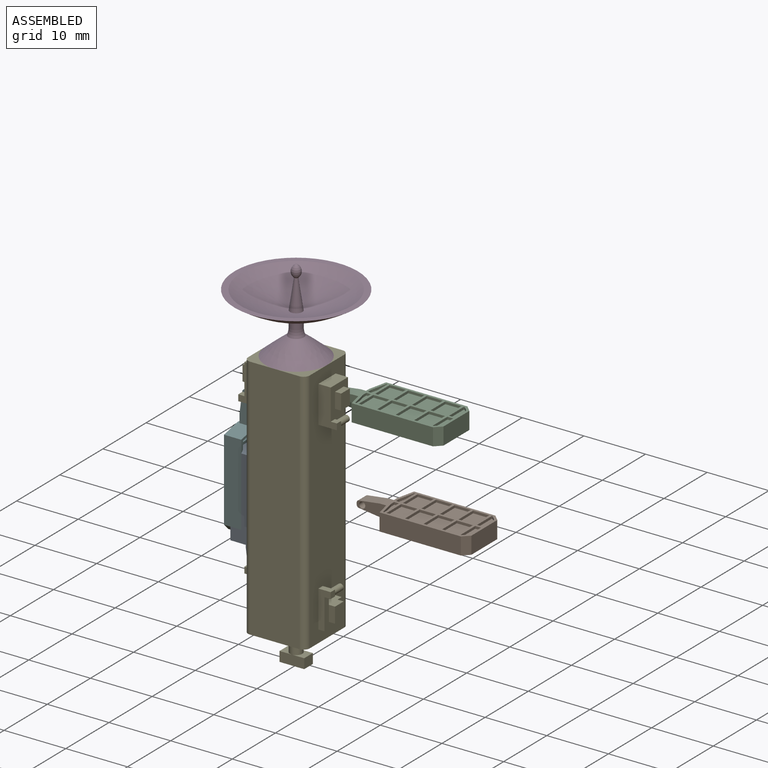
[diagram: assembled view]
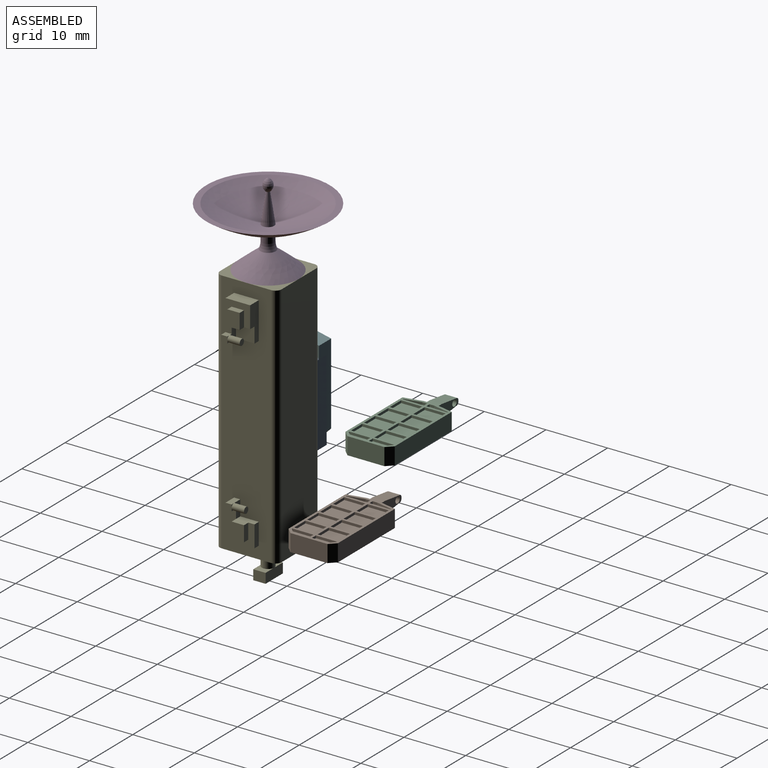
[diagram: assembled view, second angle]
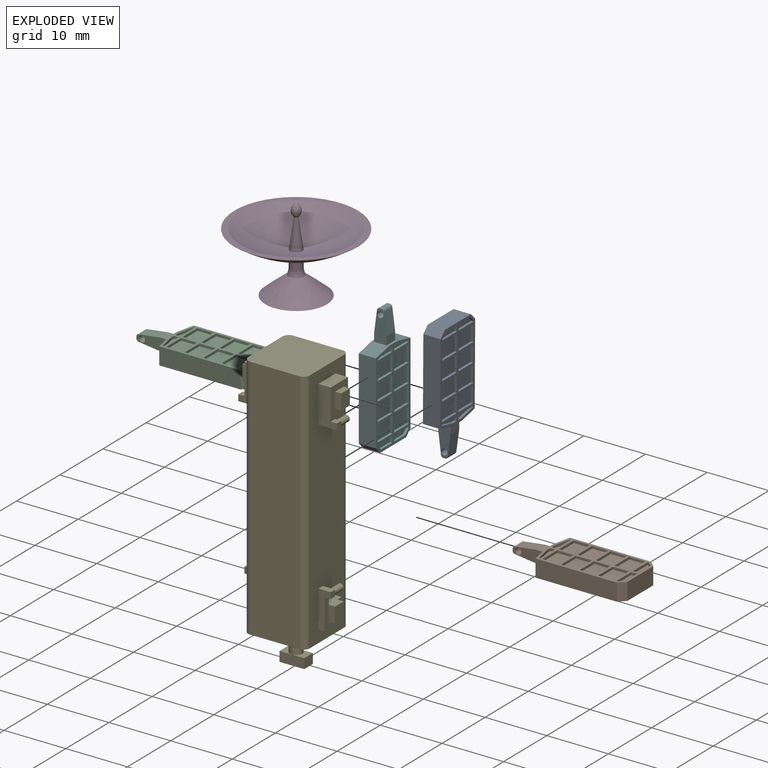
[diagram: exploded view]
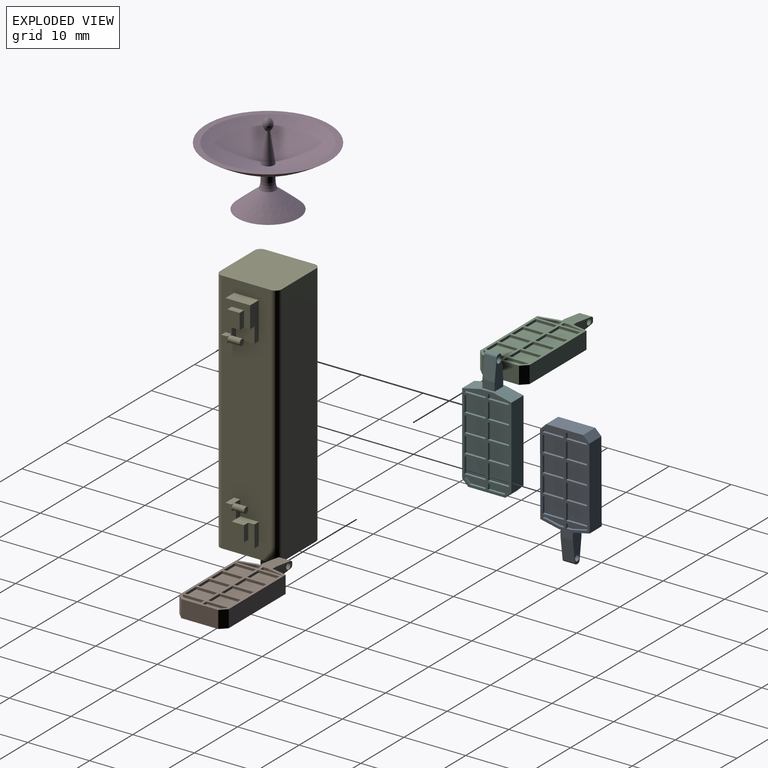
[diagram: exploded view, second angle]
ASSEMBLY  parts=6 mates=3
PART A: 149 faces, bbox 20x8x2.8 mm
  f0: plane 2x1.33mm, normal (0,0,-1), area 2.7mm2, adj f4,f6,f7,f82
  f1: plane 2x1.33mm, normal (0,0,1), area 2.7mm2, adj f2,f6,f7,f17
  f2: plane 3.45x2mm, normal (-0.13,0,0.99), area 7mm2, adj f1,f6,f7,f15
  f3: plane 2x0.3mm, normal (-1,0,0), area 0.6mm2, adj f6,f7,f15,f16
  f4: plane 3.45x2mm, normal (-0.13,0,-0.99), area 7mm2, adj f0,f6,f7,f16
  f5: cylinder r=0.5mm len=2mm, axis (0,1,0), area 6.3mm2, adj f6,f7
  f6: plane 5.13x2mm, normal (0,-1,0), area 7.5mm2, adj f0,f1,f2,f3,f4,f5,f11,f15
  f7: plane 5.13x2mm, normal (0,1,0), area 7.5mm2, adj f0,f1,f2,f3,f4,f5,f12,f15
  f8: plane 6x2.8mm, normal (1,0,0), area 16.8mm2, adj f13,f14,f65,f135
  f9: plane 13.2x2.8mm, normal (0,-1,0), area 37mm2, adj f11,f13,f65,f135
  f10: plane 13.2x2.8mm, normal (0,1,0), area 37mm2, adj f12,f14,f65,f135
  f11: plane 3x2.8mm, normal (-0.98,-0.22,0), area 8.6mm2, adj f6,f9,f17,f65,f82,f135
  f12: plane 3x2.8mm, normal (-0.98,0.22,0), area 8.6mm2, adj f7,f10,f17,f65,f82,f135
  f13: plane 2.8x1mm, normal (0.71,-0.71,0), area 4mm2, adj f8,f9,f65,f135
  f14: plane 2.8x1mm, normal (0.71,0.71,0), area 4mm2, adj f8,f10,f65,f135
  f15: cylinder r=0.4mm len=2mm, axis (0,1,0), area 1.2mm2, adj f2,f3,f6,f7
  f16: cylinder r=0.4mm len=2mm, axis (0,-1,0), area 1.2mm2, adj f3,f4,f6,f7
  f17: plane 2x0.4mm, normal (-1,0,0), area 0.8mm2, adj f1,f11,f12,f65
  f18: plane 3.4x0.4mm, normal (1,0,0), area 1.4mm2, adj f19,f21,f65,f81
  f19: plane 2.6x0.4mm, normal (0,1,0), area 1mm2, adj f18,f20,f65,f81
  f20: plane 3.4x0.4mm, normal (-1,0,0), area 1.4mm2, adj f19,f21,f65,f81
  f21: plane 2.6x0.4mm, normal (0,-1,0), area 1mm2, adj f18,f20,f65,f81
  f22: plane 2.6x0.4mm, normal (0,1,0), area 1mm2, adj f23,f25,f65,f80
  f23: plane 3.4x0.4mm, normal (-1,0,0), area 1.4mm2, adj f22,f24,f65,f80
  f24: plane 2.6x0.4mm, normal (0,-1,0), area 1mm2, adj f23,f25,f65,f80
  f25: plane 3.4x0.4mm, normal (1,0,0), area 1.4mm2, adj f22,f24,f65,f80
  f26: plane 2.6x0.4mm, normal (0,1,0), area 1mm2, adj f27,f29,f65,f79
  f27: plane 3.4x0.4mm, normal (-1,0,0), area 1.4mm2, adj f26,f28,f65,f79
  f28: plane 2.6x0.4mm, normal (0,-1,0), area 1mm2, adj f27,f29,f65,f79
  f29: plane 3.4x0.4mm, normal (1,0,0), area 1.4mm2, adj f26,f28,f65,f79
  f30: plane 2.6x0.4mm, normal (0,1,0), area 1mm2, adj f31,f33,f65,f78
  f31: plane 3.4x0.4mm, normal (-1,0,0), area 1.4mm2, adj f30,f32,f65,f78
  f32: plane 2.6x0.4mm, normal (0,-1,0), area 1mm2, adj f31,f33,f65,f78
  f33: plane 3.4x0.4mm, normal (1,0,0), area 1.4mm2, adj f30,f32,f65,f78
  f34: plane 0.92x0.4mm, normal (0,1,0), area 0.4mm2, adj f35,f38,f65,f77
  f35: plane 2.63x0.4mm, normal (-1,0,0), area 1.1mm2, adj f34,f36,f65,f77
  f36: plane 0.77x0.77mm, normal (-0.71,-0.71,0), area 0.4mm2, adj f35,f37,f65,f77
  f37: plane 0.4x0.16mm, normal (0,-1,0), area 0.1mm2, adj f36,f38,f65,f77
  f38: plane 3.4x0.4mm, normal (1,0,0), area 1.4mm2, adj f34,f37,f65,f77
  f39: plane 3.4x0.4mm, normal (-1,0,0), area 1.4mm2, adj f40,f43,f65,f76
  f40: plane 0.4x0.16mm, normal (0,-1,0), area 0.1mm2, adj f39,f41,f65,f76
  f41: plane 2.64x0.59mm, normal (0.98,-0.22,0), area 1.1mm2, adj f40,f42,f65,f76
  f42: plane 0.76x0.4mm, normal (1,0,0), area 0.3mm2, adj f41,f43,f65,f76
  f43: plane 0.74x0.4mm, normal (0,1,0), area 0.3mm2, adj f39,f42,f65,f76
  f44: plane 0.77x0.77mm, normal (-0.71,0.71,0), area 0.4mm2, adj f45,f48,f65,f75
  f45: plane 2.63x0.4mm, normal (-1,0,0), area 1.1mm2, adj f44,f46,f65,f75
  f46: plane 0.92x0.4mm, normal (0,-1,0), area 0.4mm2, adj f45,f47,f65,f75
  f47: plane 3.4x0.4mm, normal (1,0,0), area 1.4mm2, adj f46,f48,f65,f75
  f48: plane 0.4x0.16mm, normal (0,1,0), area 0.1mm2, adj f44,f47,f65,f75
  f49: plane 3.4x0.4mm, normal (-1,0,0), area 1.4mm2, adj f50,f52,f65,f74
  f50: plane 2.6x0.4mm, normal (0,-1,0), area 1mm2, adj f49,f51,f65,f74
  f51: plane 3.4x0.4mm, normal (1,0,0), area 1.4mm2, adj f50,f52,f65,f74
  f52: plane 2.6x0.4mm, normal (0,1,0), area 1mm2, adj f49,f51,f65,f74
  f53: plane 3.4x0.4mm, normal (-1,0,0), area 1.4mm2, adj f54,f56,f65,f73
  f54: plane 2.6x0.4mm, normal (0,-1,0), area 1mm2, adj f53,f55,f65,f73
  f55: plane 3.4x0.4mm, normal (1,0,0), area 1.4mm2, adj f54,f56,f65,f73
  f56: plane 2.6x0.4mm, normal (0,1,0), area 1mm2, adj f53,f55,f65,f73
  f57: plane 3.4x0.4mm, normal (-1,0,0), area 1.4mm2, adj f58,f60,f65,f72
  f58: plane 2.6x0.4mm, normal (0,-1,0), area 1mm2, adj f57,f59,f65,f72
  f59: plane 3.4x0.4mm, normal (1,0,0), area 1.4mm2, adj f58,f60,f65,f72
  f60: plane 2.6x0.4mm, normal (0,1,0), area 1mm2, adj f57,f59,f65,f72
  f61: plane 3.4x0.4mm, normal (-1,0,0), area 1.4mm2, adj f62,f64,f65,f71
  f62: plane 2.6x0.4mm, normal (0,-1,0), area 1mm2, adj f61,f63,f65,f71
  f63: plane 3.4x0.4mm, normal (1,0,0), area 1.4mm2, adj f62,f64,f65,f71
  f64: plane 2.6x0.4mm, normal (0,1,0), area 1mm2, adj f61,f63,f65,f71
  f65: plane 14.87x8mm, normal (0,0,1), area 36mm2, adj f8,f9,f10,f11,f12,f13,f14,f17
  f66: plane 2.64x0.59mm, normal (0.98,0.22,0), area 1.1mm2, adj f65,f67,f70,f148
  f67: plane 0.4x0.16mm, normal (0,1,0), area 0.1mm2, adj f65,f66,f68,f148
  f68: plane 3.4x0.4mm, normal (-1,0,0), area 1.4mm2, adj f65,f67,f69,f148
  f69: plane 0.74x0.4mm, normal (0,-1,0), area 0.3mm2, adj f65,f68,f70,f148
  f70: plane 0.76x0.4mm, normal (1,0,0), area 0.3mm2, adj f65,f66,f69,f148
  f71: plane 3.4x2.6mm, normal (0,0,1), area 8.8mm2, adj f61,f62,f63,f64
  f72: plane 3.4x2.6mm, normal (0,0,1), area 8.8mm2, adj f57,f58,f59,f60
  f73: plane 3.4x2.6mm, normal (0,0,1), area 8.8mm2, adj f53,f54,f55,f56
  f74: plane 3.4x2.6mm, normal (0,0,1), area 8.8mm2, adj f49,f50,f51,f52
  f75: plane 3.4x0.92mm, normal (0,0,1), area 2.8mm2, adj f44,f45,f46,f47,f48
  f76: plane 3.4x0.74mm, normal (0,0,1), area 1.8mm2, adj f39,f40,f41,f42,f43
  f77: plane 3.4x0.92mm, normal (0,0,1), area 2.8mm2, adj f34,f35,f36,f37,f38
  f78: plane 3.4x2.6mm, normal (0,0,1), area 8.8mm2, adj f30,f31,f32,f33
  f79: plane 3.4x2.6mm, normal (0,0,1), area 8.8mm2, adj f26,f27,f28,f29
  f80: plane 3.4x2.6mm, normal (0,0,1), area 8.8mm2, adj f22,f23,f24,f25
  f81: plane 3.4x2.6mm, normal (0,0,1), area 8.8mm2, adj f18,f19,f20,f21
  f82: plane 2x0.4mm, normal (-1,0,0), area 0.8mm2, adj f0,f11,f12,f135
  f83: plane 2.6x0.4mm, normal (0,-1,0), area 1mm2, adj f84,f123,f135,f147
  f84: plane 3.4x0.4mm, normal (-1,0,0), area 1.4mm2, adj f83,f85,f135,f147
  f85: plane 2.6x0.4mm, normal (0,1,0), area 1mm2, adj f84,f123,f135,f147
  f86: plane 3.4x0.4mm, normal (1,0,0), area 1.4mm2, adj f87,f124,f135,f146
  f87: plane 2.6x0.4mm, normal (0,-1,0), area 1mm2, adj f86,f88,f135,f146
  f88: plane 3.4x0.4mm, normal (-1,0,0), area 1.4mm2, adj f87,f124,f135,f146
  f89: plane 3.4x0.4mm, normal (1,0,0), area 1.4mm2, adj f90,f125,f135,f145
  f90: plane 2.6x0.4mm, normal (0,-1,0), area 1mm2, adj f89,f91,f135,f145
  f91: plane 3.4x0.4mm, normal (-1,0,0), area 1.4mm2, adj f90,f125,f135,f145
  f92: plane 3.4x0.4mm, normal (1,0,0), area 1.4mm2, adj f93,f126,f135,f144
  f93: plane 2.6x0.4mm, normal (0,-1,0), area 1mm2, adj f92,f94,f135,f144
  f94: plane 3.4x0.4mm, normal (-1,0,0), area 1.4mm2, adj f93,f126,f135,f144
  f95: plane 3.4x0.4mm, normal (1,0,0), area 1.4mm2, adj f96,f127,f135,f143
  f96: plane 0.4x0.16mm, normal (0,-1,0), area 0.1mm2, adj f95,f97,f135,f143
  f97: plane 0.77x0.77mm, normal (-0.71,-0.71,0), area 0.4mm2, adj f96,f98,f135,f143
  f98: plane 2.63x0.4mm, normal (-1,0,0), area 1.1mm2, adj f97,f127,f135,f143
  f99: plane 0.74x0.4mm, normal (0,1,0), area 0.3mm2, adj f100,f128,f135,f142
  f100: plane 0.76x0.4mm, normal (1,0,0), area 0.3mm2, adj f99,f101,f135,f142
  f101: plane 2.64x0.59mm, normal (0.98,-0.22,0), area 1.1mm2, adj f100,f102,f135,f142
  f102: plane 0.4x0.16mm, normal (0,-1,0), area 0.1mm2, adj f101,f128,f135,f142
  f103: plane 0.4x0.16mm, normal (0,1,0), area 0.1mm2, adj f104,f129,f135,f141
  f104: plane 3.4x0.4mm, normal (1,0,0), area 1.4mm2, adj f103,f105,f135,f141
  f105: plane 0.92x0.4mm, normal (0,-1,0), area 0.4mm2, adj f104,f106,f135,f141
  f106: plane 2.63x0.4mm, normal (-1,0,0), area 1.1mm2, adj f105,f129,f135,f141
  f107: plane 2.6x0.4mm, normal (0,1,0), area 1mm2, adj f108,f130,f135,f140
  f108: plane 3.4x0.4mm, normal (1,0,0), area 1.4mm2, adj f107,f109,f135,f140
  f109: plane 2.6x0.4mm, normal (0,-1,0), area 1mm2, adj f108,f130,f135,f140
  f110: plane 2.6x0.4mm, normal (0,1,0), area 1mm2, adj f111,f131,f135,f139
  f111: plane 3.4x0.4mm, normal (1,0,0), area 1.4mm2, adj f110,f112,f135,f139
  f112: plane 2.6x0.4mm, normal (0,-1,0), area 1mm2, adj f111,f131,f135,f139
  f113: plane 2.6x0.4mm, normal (0,1,0), area 1mm2, adj f114,f132,f135,f138
  f114: plane 3.4x0.4mm, normal (1,0,0), area 1.4mm2, adj f113,f115,f135,f138
  f115: plane 2.6x0.4mm, normal (0,-1,0), area 1mm2, adj f114,f132,f135,f138
  f116: plane 2.6x0.4mm, normal (0,1,0), area 1mm2, adj f117,f133,f135,f137
  f117: plane 3.4x0.4mm, normal (1,0,0), area 1.4mm2, adj f116,f118,f135,f137
  f118: plane 2.6x0.4mm, normal (0,-1,0), area 1mm2, adj f117,f133,f135,f137
  f119: plane 0.76x0.4mm, normal (1,0,0), area 0.3mm2, adj f120,f134,f135,f136
  f120: plane 0.74x0.4mm, normal (0,-1,0), area 0.3mm2, adj f119,f121,f135,f136
  f121: plane 3.4x0.4mm, normal (-1,0,0), area 1.4mm2, adj f120,f122,f135,f136
  f122: plane 0.4x0.16mm, normal (0,1,0), area 0.1mm2, adj f121,f134,f135,f136
  f123: plane 3.4x0.4mm, normal (1,0,0), area 1.4mm2, adj f83,f85,f135,f147
  f124: plane 2.6x0.4mm, normal (0,1,0), area 1mm2, adj f86,f88,f135,f146
  f125: plane 2.6x0.4mm, normal (0,1,0), area 1mm2, adj f89,f91,f135,f145
  f126: plane 2.6x0.4mm, normal (0,1,0), area 1mm2, adj f92,f94,f135,f144
  f127: plane 0.92x0.4mm, normal (0,1,0), area 0.4mm2, adj f95,f98,f135,f143
  f128: plane 3.4x0.4mm, normal (-1,0,0), area 1.4mm2, adj f99,f102,f135,f142
  f129: plane 0.77x0.77mm, normal (-0.71,0.71,0), area 0.4mm2, adj f103,f106,f135,f141
  f130: plane 3.4x0.4mm, normal (-1,0,0), area 1.4mm2, adj f107,f109,f135,f140
  f131: plane 3.4x0.4mm, normal (-1,0,0), area 1.4mm2, adj f110,f112,f135,f139
  f132: plane 3.4x0.4mm, normal (-1,0,0), area 1.4mm2, adj f113,f115,f135,f138
  f133: plane 3.4x0.4mm, normal (-1,0,0), area 1.4mm2, adj f116,f118,f135,f137
  f134: plane 2.64x0.59mm, normal (0.98,0.22,0), area 1.1mm2, adj f119,f122,f135,f136
  f135: plane 14.87x8mm, normal (0,0,-1), area 36mm2, adj f8,f9,f10,f11,f12,f13,f14,f82
  f136: plane 3.4x0.74mm, normal (0,0,-1), area 1.8mm2, adj f119,f120,f121,f122,f134
  f137: plane 3.4x2.6mm, normal (0,0,-1), area 8.8mm2, adj f116,f117,f118,f133
  f138: plane 3.4x2.6mm, normal (0,0,-1), area 8.8mm2, adj f113,f114,f115,f132
  f139: plane 3.4x2.6mm, normal (0,0,-1), area 8.8mm2, adj f110,f111,f112,f131
  f140: plane 3.4x2.6mm, normal (0,0,-1), area 8.8mm2, adj f107,f108,f109,f130
  f141: plane 3.4x0.92mm, normal (0,0,-1), area 2.8mm2, adj f103,f104,f105,f106,f129
  f142: plane 3.4x0.74mm, normal (0,0,-1), area 1.8mm2, adj f99,f100,f101,f102,f128
  f143: plane 3.4x0.92mm, normal (0,0,-1), area 2.8mm2, adj f95,f96,f97,f98,f127
  f144: plane 3.4x2.6mm, normal (0,0,-1), area 8.8mm2, adj f92,f93,f94,f126
  f145: plane 3.4x2.6mm, normal (0,0,-1), area 8.8mm2, adj f89,f90,f91,f125
  f146: plane 3.4x2.6mm, normal (0,0,-1), area 8.8mm2, adj f86,f87,f88,f124
  f147: plane 3.4x2.6mm, normal (0,0,-1), area 8.8mm2, adj f83,f84,f85,f123
  f148: plane 3.4x0.74mm, normal (0,0,1), area 1.8mm2, adj f66,f67,f68,f69,f70
PART B: same geometry as A
PART C: same geometry as A
PART D: 9 faces, bbox 20x20x13.5 mm
  f0: cylinder r=1mm len=2mm, axis (0,0,-1), area 9.4mm2, adj f1,f8
  f1: revolved ~20x20mm, area 348.7mm2, adj f0,f2
  f2: plane 20x20mm, normal (0,0,1), area 59.7mm2, adj f1,f3
  f3: revolved ~18x18mm, area 273.4mm2, adj f2,f4
  f4: cone r=1mm half-angle=8.4deg, axis (0,0,-1), area 19.7mm2, adj f3,f5
  f5: revolved ~1.98x1.5mm, area 8.2mm2, adj f4
  f6: plane 10x10mm, normal (0,0,-1), area 78.5mm2, adj f7
  f7: revolved ~10x10mm, area 95.5mm2, adj f6,f8
  f8: torus R=3.94mm, axis (0,0,-1), area 8.3mm2, adj f0,f7
PART E: 88 faces, bbox 16x10x45 mm
  f0: plane 40x8mm, normal (1,0,0), area 279.5mm2, adj f12,f17,f18,f19,f64,f65,f66,f67
  f1: plane 4x3mm, normal (0,0,-1), area 6mm2, adj f4,f11,f20,f22,f33,f34,f41
  f2: plane 5x4mm, normal (-1,0,0), area 10.5mm2, adj f20,f21,f22,f29,f30,f31,f32,f33
  f3: plane 0.5x0.5mm, normal (0,1,0), area 0.1mm2, adj f40,f41,f42
  f4: plane 0.5x0.5mm, normal (0,1,0), area 0.1mm2, adj f1,f41,f42
  f5: plane 2.5x1.5mm, normal (0,1,0), area 2.6mm2, adj f7,f11,f26,f35,f37,f39
  f6: plane 0.5x0.5mm, normal (0,1,0), area 0.1mm2, adj f7,f38,f39
  f7: plane 2x1mm, normal (0,0,1), area 2mm2, adj f5,f6,f11,f25,f38
  f8: plane 2.5x1mm, normal (0,-1,0), area 2.5mm2, adj f26,f27,f28,f35
  f9: plane 2.5x1mm, normal (0,1,0), area 2.5mm2, adj f26,f27,f28,f35
  f10: plane 2.5x2mm, normal (-1,0,0), area 5mm2, adj f29,f30,f31,f32
  f11: plane 40x8mm, normal (-1,0,0), area 279.5mm2, adj f1,f5,f7,f14,f15,f18,f19,f20
  f12: cylinder r=1mm len=40mm, axis (0,0,-1), area 62.8mm2, adj f0,f13,f18,f19
  f13: plane 40x8mm, normal (0,1,0), area 320mm2, adj f12,f14,f18,f19
  f14: cylinder r=1mm len=40mm, axis (0,0,-1), area 62.8mm2, adj f11,f13,f18,f19
  f15: cylinder r=1mm len=40mm, axis (0,0,-1), area 62.8mm2, adj f11,f16,f18,f19
  f16: plane 40x8mm, normal (0,-1,0), area 320mm2, adj f15,f17,f18,f19
  f17: cylinder r=1mm len=40mm, axis (0,0,-1), area 62.8mm2, adj f0,f16,f18,f19
  f18: plane 10x10mm, normal (0,0,1), area 99.1mm2, adj f0,f11,f12,f13,f14,f15,f16,f17
  f19: plane 10x10mm, normal (0,0,-1), area 96mm2, adj f0,f11,f12,f13,f14,f15,f16,f17
  f20: plane 6x3mm, normal (0,-1,0), area 13mm2, adj f1,f2,f11,f21,f40,f41
  f21: plane 4x2mm, normal (0,0,1), area 8mm2, adj f2,f11,f20,f22
  f22: plane 6x2mm, normal (0,1,0), area 9.5mm2, adj f1,f2,f11,f21,f32,f34
  f23: plane 3.5x1mm, normal (0,1,0), area 3.5mm2, adj f11,f24,f26,f35
  f24: plane 4x1mm, normal (0,0,-1), area 4mm2, adj f11,f23,f25,f26
  f25: plane 6x2mm, normal (0,-1,0), area 7mm2, adj f7,f11,f24,f26,f37,f38
  f26: plane 5x4mm, normal (-1,0,0), area 10.5mm2, adj f5,f8,f9,f23,f24,f25,f27,f35
  f27: plane 2x1mm, normal (0,0,-1), area 2mm2, adj f8,f9,f26,f28
  f28: plane 2.5x2mm, normal (-1,0,0), area 5mm2, adj f8,f9,f27,f35
  f29: plane 2.5x1mm, normal (0,-1,0), area 2.5mm2, adj f2,f10,f30,f32
  f30: plane 2x1mm, normal (0,0,1), area 2mm2, adj f2,f10,f29,f31
  f31: plane 2.5x1mm, normal (0,1,0), area 2.5mm2, adj f2,f10,f30,f32
  f32: plane 3x2mm, normal (0,0,-1), area 5mm2, adj f2,f10,f22,f29,f31,f33,f34
  f33: plane 2.5x1.5mm, normal (0,1,0), area 2.6mm2, adj f1,f2,f32,f34,f40,f42
  f34: plane 3x2.5mm, normal (-1,0,0), area 7.5mm2, adj f1,f22,f32,f33
  f35: plane 3x2mm, normal (0,0,1), area 5mm2, adj f5,f8,f9,f11,f23,f26,f28
  f36: plane 0.5x0.5mm, normal (0,1,0), area 0.1mm2, adj f37,f38,f39
  f37: plane 1x1mm, normal (0,0,-1), area 1mm2, adj f5,f25,f26,f36,f38
  f38: plane 1x1mm, normal (-1,0,0), area 1mm2, adj f6,f7,f25,f36,f37
  f39: cylinder r=0.5mm len=2mm, axis (0,-1,0), area 6.3mm2, adj f5,f6,f36,f52
  f40: plane 1x1mm, normal (0,0,1), area 1mm2, adj f2,f3,f20,f33,f41
  f41: plane 1x1mm, normal (-1,0,0), area 1mm2, adj f1,f3,f4,f20,f40
  f42: cylinder r=0.5mm len=2mm, axis (0,1,0), area 6.3mm2, adj f3,f4,f33,f51
  f43: cylinder r=1mm len=3.4mm, axis (0,0,1), area 21.4mm2, adj f19,f44,f45
  f44: plane 2x2mm, normal (0,0,1), area 2.4mm2, adj f43,f46,f47,f48
  f45: plane 2x2mm, normal (0,0,1), area 2.4mm2, adj f43,f46,f48,f49
  f46: plane 4x1.6mm, normal (0,1,0), area 6.4mm2, adj f44,f45,f47,f49,f50
  f47: plane 2x1.6mm, normal (1,0,0), area 3.2mm2, adj f44,f46,f48,f50
  f48: plane 4x1.6mm, normal (0,-1,0), area 6.4mm2, adj f44,f45,f47,f49,f50
  f49: plane 2x1.6mm, normal (-1,0,0), area 3.2mm2, adj f45,f46,f48,f50
  f50: plane 4x2mm, normal (0,0,-1), area 8mm2, adj f46,f47,f48,f49
  f51: plane 1x1mm, normal (0,1,0), area 0.8mm2, adj f42
  f52: plane 1x1mm, normal (0,1,0), area 0.8mm2, adj f39
  f53: plane 1x1mm, normal (0,1,0), area 0.8mm2, adj f56
  f54: plane 0.5x0.5mm, normal (0,1,0), area 0.1mm2, adj f56,f58,f59
  f55: plane 2x1mm, normal (0,0,-1), area 2mm2, adj f60,f61,f62,f63
  f56: cylinder r=0.5mm len=2mm, axis (0,-1,0), area 6.3mm2, adj f53,f54,f57,f69
  f57: plane 0.5x0.5mm, normal (0,1,0), area 0.1mm2, adj f56,f58,f68
  f58: plane 1x1mm, normal (1,0,0), area 1mm2, adj f54,f57,f59,f65,f68
  f59: plane 1x1mm, normal (0,0,-1), area 1mm2, adj f54,f58,f61,f65,f69
  f60: plane 2.5x1mm, normal (0,-1,0), area 2.5mm2, adj f55,f61,f63,f64
  f61: plane 5x4mm, normal (1,0,0), area 10.5mm2, adj f55,f59,f60,f62,f64,f65,f66,f67
  f62: plane 2.5x1mm, normal (0,1,0), area 2.5mm2, adj f55,f61,f63,f64
  f63: plane 2.5x2mm, normal (1,0,0), area 5mm2, adj f55,f60,f62,f64
  f64: plane 3x2mm, normal (0,0,1), area 5mm2, adj f0,f60,f61,f62,f63,f67,f69
  f65: plane 6x2mm, normal (0,-1,0), area 7mm2, adj f0,f58,f59,f61,f66,f68
  f66: plane 4x1mm, normal (0,0,-1), area 4mm2, adj f0,f61,f65,f67
  f67: plane 3.5x1mm, normal (0,1,0), area 3.5mm2, adj f0,f61,f64,f66
  f68: plane 2x1mm, normal (0,0,1), area 2mm2, adj f0,f57,f58,f65,f69
  f69: plane 2.5x1.5mm, normal (0,1,0), area 2.6mm2, adj f0,f56,f59,f61,f64,f68
  f70: plane 4x3mm, normal (0,0,-1), area 6mm2, adj f0,f73,f75,f77,f82,f83,f85
  f71: plane 5x4mm, normal (1,0,0), area 10.5mm2, adj f75,f76,f77,f78,f79,f80,f81,f82
  f72: plane 0.5x0.5mm, normal (0,1,0), area 0.1mm2, adj f84,f85,f86
  f73: plane 0.5x0.5mm, normal (0,1,0), area 0.1mm2, adj f70,f85,f86
  f74: plane 2.5x2mm, normal (1,0,0), area 5mm2, adj f78,f79,f80,f81
  f75: plane 6x3mm, normal (0,-1,0), area 13mm2, adj f0,f70,f71,f76,f84,f85
  f76: plane 4x2mm, normal (0,0,1), area 8mm2, adj f0,f71,f75,f77
  f77: plane 6x2mm, normal (0,1,0), area 9.5mm2, adj f0,f70,f71,f76,f81,f83
  f78: plane 2.5x1mm, normal (0,-1,0), area 2.5mm2, adj f71,f74,f79,f81
  f79: plane 2x1mm, normal (0,0,1), area 2mm2, adj f71,f74,f78,f80
  f80: plane 2.5x1mm, normal (0,1,0), area 2.5mm2, adj f71,f74,f79,f81
  f81: plane 3x2mm, normal (0,0,-1), area 5mm2, adj f71,f74,f77,f78,f80,f82,f83
  f82: plane 2.5x1.5mm, normal (0,1,0), area 2.6mm2, adj f70,f71,f81,f83,f84,f86
  f83: plane 3x2.5mm, normal (1,0,0), area 7.5mm2, adj f70,f77,f81,f82
  f84: plane 1x1mm, normal (0,0,1), area 1mm2, adj f71,f72,f75,f82,f85
  f85: plane 1x1mm, normal (1,0,0), area 1mm2, adj f70,f72,f73,f75,f84
  f86: cylinder r=0.5mm len=2mm, axis (0,1,0), area 6.3mm2, adj f72,f73,f82,f87
  f87: plane 1x1mm, normal (0,1,0), area 0.8mm2, adj f86
PART F: same geometry as A
PLACE A rot(axis=(-0.71,0,-0.71),180deg) t=(-5.49,-2.35,5.13)mm
PLACE B t=(-0.74,16.44,8.49)mm
PLACE C t=(-8.11,20.5,20.97)mm
PLACE D t=(1.01,-2.35,43.63)mm
PLACE E t=(1.01,-2.35,-2.37)mm fixed
PLACE F rot(axis=(0.71,0,-0.71),180deg) t=(-6.49,-2.35,30.13)mm
MATE revolute A.f5 <-> E.f39  axis (0,1,0) through (-5.49,-1.35,5.13)mm
MATE revolute F.f5 <-> E.f42  axis (0,1,0) through (-6.49,-1.35,30.13)mm
MATE fastened D.f0 <-> E.f43  axis (0,0,-1) through (1.01,-2.35,37.63)mm
